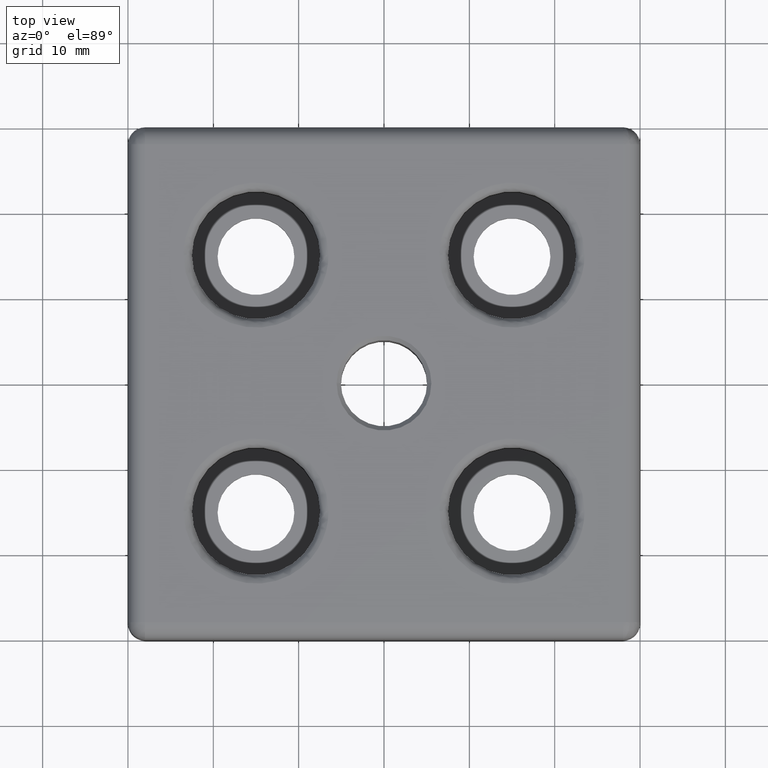
[diagram: clean part render]
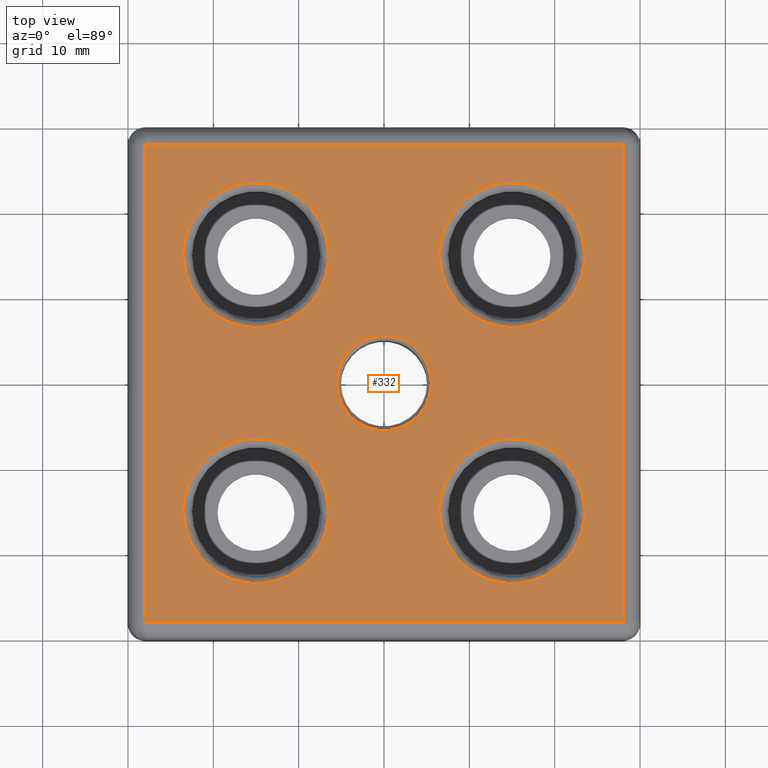
[diagram: same view with one face highlighted and labeled with its STEP entity id]
A machine part, top view. The second image highlights one B-rep face of the part: STEP entity #332.
In plain terms, the highlighted planar face has unit normal (0, 0, -1).
Its self-contained STEP definition (entity closure, byte-faithful):
#332=ADVANCED_FACE('NONE',(#793,#794,#795,#796,#797,#798),#799,.F.);
#793=FACE_OUTER_BOUND('',#1860,.T.);
#794=FACE_BOUND('',#1861,.T.);
#795=FACE_BOUND('',#1862,.T.);
#796=FACE_BOUND('',#1863,.T.);
#797=FACE_BOUND('',#1864,.T.);
#798=FACE_BOUND('',#1865,.T.);
#799=PLANE('',#1866);
#1860=EDGE_LOOP('',(#3656,#3657,#3658,#3659));
#1861=EDGE_LOOP('',(#3660,#3661));
#1862=EDGE_LOOP('',(#3662,#3663));
#1863=EDGE_LOOP('',(#3664,#3665));
#1864=EDGE_LOOP('',(#3666,#3667));
#1865=EDGE_LOOP('',(#3668,#3669));
#1866=AXIS2_PLACEMENT_3D('',#3670,#3671,#3672);
#3656=ORIENTED_EDGE('',*,*,#5047,.F.);
#3657=ORIENTED_EDGE('',*,*,#5048,.F.);
#3658=ORIENTED_EDGE('',*,*,#5049,.F.);
#3659=ORIENTED_EDGE('',*,*,#5050,.F.);
#3660=ORIENTED_EDGE('',*,*,#5051,.F.);
#3661=ORIENTED_EDGE('',*,*,#4946,.F.);
#3662=ORIENTED_EDGE('',*,*,#4837,.F.);
#3663=ORIENTED_EDGE('',*,*,#5052,.F.);
#3664=ORIENTED_EDGE('',*,*,#4842,.F.);
#3665=ORIENTED_EDGE('',*,*,#5053,.F.);
#3666=ORIENTED_EDGE('',*,*,#4847,.F.);
#3667=ORIENTED_EDGE('',*,*,#5054,.F.);
#3668=ORIENTED_EDGE('',*,*,#4852,.F.);
#3669=ORIENTED_EDGE('',*,*,#5055,.F.);
#3670=CARTESIAN_POINT('',(30.0,30.0,12.0));
#3671=DIRECTION('',(0.0,0.0,-1.0));
#3672=DIRECTION('',(0.0,-1.0,0.0));
#4837=EDGE_CURVE('NONE',#5553,#5554,#5555,.T.);
#4842=EDGE_CURVE('NONE',#5562,#5563,#5564,.T.);
#4847=EDGE_CURVE('NONE',#5571,#5572,#5573,.T.);
#4852=EDGE_CURVE('NONE',#5580,#5581,#5582,.T.);
#4946=EDGE_CURVE('NONE',#5740,#5742,#5743,.T.);
#5047=EDGE_CURVE('NONE',#5612,#5906,#5907,.T.);
#5048=EDGE_CURVE('NONE',#5908,#5612,#5909,.T.);
#5049=EDGE_CURVE('NONE',#5910,#5908,#5911,.T.);
#5050=EDGE_CURVE('NONE',#5906,#5910,#5912,.T.);
#5051=EDGE_CURVE('NONE',#5742,#5740,#5913,.T.);
#5052=EDGE_CURVE('NONE',#5554,#5553,#5914,.T.);
#5053=EDGE_CURVE('NONE',#5563,#5562,#5915,.T.);
#5054=EDGE_CURVE('NONE',#5572,#5571,#5916,.T.);
#5055=EDGE_CURVE('NONE',#5581,#5580,#5917,.T.);
#5553=VERTEX_POINT('NONE',#6526);
#5554=VERTEX_POINT('NONE',#6527);
#5555=(B_SPLINE_CURVE(3,(#6529,#6530,#6531,#6532),.UNSPECIFIED.,.F.,.F.)B_SPLINE_CURVE_WITH_KNOTS((4,4),(0.0,1.0),.UNSPECIFIED.)RATIONAL_B_SPLINE_CURVE((1.0,0.333333333333333,0.333333333333333,1.0))BOUNDED_CURVE()REPRESENTATION_ITEM('')GEOMETRIC_REPRESENTATION_ITEM()CURVE());
#5562=VERTEX_POINT('NONE',#6545);
#5563=VERTEX_POINT('NONE',#6546);
#5564=(B_SPLINE_CURVE(3,(#6548,#6549,#6550,#6551),.UNSPECIFIED.,.F.,.F.)B_SPLINE_CURVE_WITH_KNOTS((4,4),(0.0,1.0),.UNSPECIFIED.)RATIONAL_B_SPLINE_CURVE((1.0,0.333333333333333,0.333333333333333,1.0))BOUNDED_CURVE()REPRESENTATION_ITEM('')GEOMETRIC_REPRESENTATION_ITEM()CURVE());
#5571=VERTEX_POINT('NONE',#6564);
#5572=VERTEX_POINT('NONE',#6565);
#5573=(B_SPLINE_CURVE(3,(#6567,#6568,#6569,#6570),.UNSPECIFIED.,.F.,.F.)B_SPLINE_CURVE_WITH_KNOTS((4,4),(0.0,1.0),.UNSPECIFIED.)RATIONAL_B_SPLINE_CURVE((1.0,0.333333333333333,0.333333333333333,1.0))BOUNDED_CURVE()REPRESENTATION_ITEM('')GEOMETRIC_REPRESENTATION_ITEM()CURVE());
#5580=VERTEX_POINT('NONE',#6583);
#5581=VERTEX_POINT('NONE',#6584);
#5582=(B_SPLINE_CURVE(3,(#6586,#6587,#6588,#6589),.UNSPECIFIED.,.F.,.F.)B_SPLINE_CURVE_WITH_KNOTS((4,4),(0.0,1.0),.UNSPECIFIED.)RATIONAL_B_SPLINE_CURVE((1.0,0.333333333333333,0.333333333333333,1.0))BOUNDED_CURVE()REPRESENTATION_ITEM('')GEOMETRIC_REPRESENTATION_ITEM()CURVE());
#5612=VERTEX_POINT('NONE',#6625);
#5740=VERTEX_POINT('NONE',#6834);
#5742=VERTEX_POINT('NONE',#6837);
#5743=CIRCLE('',#6838,5.54999999997108);
#5906=VERTEX_POINT('NONE',#7042);
#5907=LINE('',#7043,#7044);
#5908=VERTEX_POINT('NONE',#7045);
#5909=LINE('',#7046,#7047);
#5910=VERTEX_POINT('NONE',#7048);
#5911=LINE('',#7049,#7050);
#5912=LINE('',#7051,#7052);
#5913=CIRCLE('',#7053,5.54999999997108);
#5914=(B_SPLINE_CURVE(3,(#7055,#7056,#7057,#7058),.UNSPECIFIED.,.F.,.F.)B_SPLINE_CURVE_WITH_KNOTS((4,4),(0.0,1.0),.UNSPECIFIED.)RATIONAL_B_SPLINE_CURVE((1.0,0.333333333333333,0.333333333333333,1.0))BOUNDED_CURVE()REPRESENTATION_ITEM('')GEOMETRIC_REPRESENTATION_ITEM()CURVE());
#5915=(B_SPLINE_CURVE(3,(#7066,#7067,#7068,#7069),.UNSPECIFIED.,.F.,.F.)B_SPLINE_CURVE_WITH_KNOTS((4,4),(0.0,1.0),.UNSPECIFIED.)RATIONAL_B_SPLINE_CURVE((1.0,0.333333333333334,0.333333333333334,1.0))BOUNDED_CURVE()REPRESENTATION_ITEM('')GEOMETRIC_REPRESENTATION_ITEM()CURVE());
#5916=(B_SPLINE_CURVE(3,(#7077,#7078,#7079,#7080),.UNSPECIFIED.,.F.,.F.)B_SPLINE_CURVE_WITH_KNOTS((4,4),(0.0,1.0),.UNSPECIFIED.)RATIONAL_B_SPLINE_CURVE((1.0,0.333333333333334,0.333333333333334,1.0))BOUNDED_CURVE()REPRESENTATION_ITEM('')GEOMETRIC_REPRESENTATION_ITEM()CURVE());
#5917=(B_SPLINE_CURVE(3,(#7088,#7089,#7090,#7091),.UNSPECIFIED.,.F.,.F.)B_SPLINE_CURVE_WITH_KNOTS((4,4),(0.0,1.0),.UNSPECIFIED.)RATIONAL_B_SPLINE_CURVE((1.0,0.333333333333333,0.333333333333333,1.0))BOUNDED_CURVE()REPRESENTATION_ITEM('')GEOMETRIC_REPRESENTATION_ITEM()CURVE());
#6526=CARTESIAN_POINT('',(-23.5,-15.0,12.0));
#6527=CARTESIAN_POINT('',(-6.49999999999999,-15.0,12.0));
#6529=CARTESIAN_POINT('',(-23.5,-15.0,12.0));
#6530=CARTESIAN_POINT('',(-23.5,-32.0,12.0));
#6531=CARTESIAN_POINT('',(-6.49999999999999,-32.0,12.0));
#6532=CARTESIAN_POINT('',(-6.49999999999999,-15.0,12.0));
#6545=CARTESIAN_POINT('',(6.5,-15.0,12.0));
#6546=CARTESIAN_POINT('',(23.5,-15.0,12.0));
#6548=CARTESIAN_POINT('',(6.5,-15.0,12.0));
#6549=CARTESIAN_POINT('',(6.5,-32.0,12.0));
#6550=CARTESIAN_POINT('',(23.5,-32.0,12.0));
#6551=CARTESIAN_POINT('',(23.5,-15.0,12.0));
#6564=CARTESIAN_POINT('',(6.5,15.0,12.0));
#6565=CARTESIAN_POINT('',(23.5,15.0,12.0));
#6567=CARTESIAN_POINT('',(6.5,15.0,12.0));
#6568=CARTESIAN_POINT('',(6.5,-2.0,12.0));
#6569=CARTESIAN_POINT('',(23.5,-2.0,12.0));
#6570=CARTESIAN_POINT('',(23.5,15.0,12.0));
#6583=CARTESIAN_POINT('',(-23.5,15.0,12.0));
#6584=CARTESIAN_POINT('',(-6.5,15.0,12.0));
#6586=CARTESIAN_POINT('',(-23.5,15.0,12.0));
#6587=CARTESIAN_POINT('',(-23.5,-2.0,12.0));
#6588=CARTESIAN_POINT('',(-6.5,-2.0,12.0));
#6589=CARTESIAN_POINT('',(-6.5,15.0,12.0));
#6625=CARTESIAN_POINT('',(28.0,28.0,12.0));
#6834=CARTESIAN_POINT('',(-5.54999999997108,6.79678973523239E-016,12.0000000000573));
#6837=CARTESIAN_POINT('',(5.54999999997108,0.0,12.0000000000573));
#6838=AXIS2_PLACEMENT_3D('',#8600,#8601,#8602);
#7042=CARTESIAN_POINT('',(28.0,-28.0,12.0));
#7043=CARTESIAN_POINT('',(28.0,30.0,12.0));
#7044=VECTOR('',#8752,1000.0);
#7045=CARTESIAN_POINT('',(-28.0,28.0,12.0));
#7046=CARTESIAN_POINT('',(30.0,28.0,12.0));
#7047=VECTOR('',#8753,1000.0);
#7048=CARTESIAN_POINT('',(-28.0,-28.0,12.0));
#7049=CARTESIAN_POINT('',(-28.0,30.0,12.0));
#7050=VECTOR('',#8754,1000.0);
#7051=CARTESIAN_POINT('',(30.0,-28.0,12.0));
#7052=VECTOR('',#8755,1000.0);
#7053=AXIS2_PLACEMENT_3D('',#8756,#8757,#8758);
#7055=CARTESIAN_POINT('',(-6.49999999999999,-15.0,12.0));
#7056=CARTESIAN_POINT('',(-6.49999999999999,2.0,12.0));
#7057=CARTESIAN_POINT('',(-23.5,2.0,12.0));
#7058=CARTESIAN_POINT('',(-23.5,-15.0,12.0));
#7066=CARTESIAN_POINT('',(23.5,-15.0,12.0));
#7067=CARTESIAN_POINT('',(23.5,2.0,12.0));
#7068=CARTESIAN_POINT('',(6.5,1.99999999999999,12.0));
#7069=CARTESIAN_POINT('',(6.5,-15.0,12.0));
#7077=CARTESIAN_POINT('',(23.5,15.0,12.0));
#7078=CARTESIAN_POINT('',(23.5,32.0,12.0));
#7079=CARTESIAN_POINT('',(6.5,32.0,12.0));
#7080=CARTESIAN_POINT('',(6.5,15.0,12.0));
#7088=CARTESIAN_POINT('',(-6.5,15.0,12.0));
#7089=CARTESIAN_POINT('',(-6.5,32.0,12.0));
#7090=CARTESIAN_POINT('',(-23.5,32.0,12.0));
#7091=CARTESIAN_POINT('',(-23.5,15.0,12.0));
#8600=CARTESIAN_POINT('',(0.0,0.0,12.0000000000573));
#8601=DIRECTION('',(0.0,-0.0,1.0));
#8602=DIRECTION('',(1.0,0.0,0.0));
#8752=DIRECTION('',(-0.0,-1.0,-0.0));
#8753=DIRECTION('',(1.0,-0.0,0.0));
#8754=DIRECTION('',(0.0,1.0,0.0));
#8755=DIRECTION('',(-1.0,0.0,-0.0));
#8756=CARTESIAN_POINT('',(0.0,0.0,12.0000000000573));
#8757=DIRECTION('',(0.0,-0.0,1.0));
#8758=DIRECTION('',(1.0,0.0,0.0));